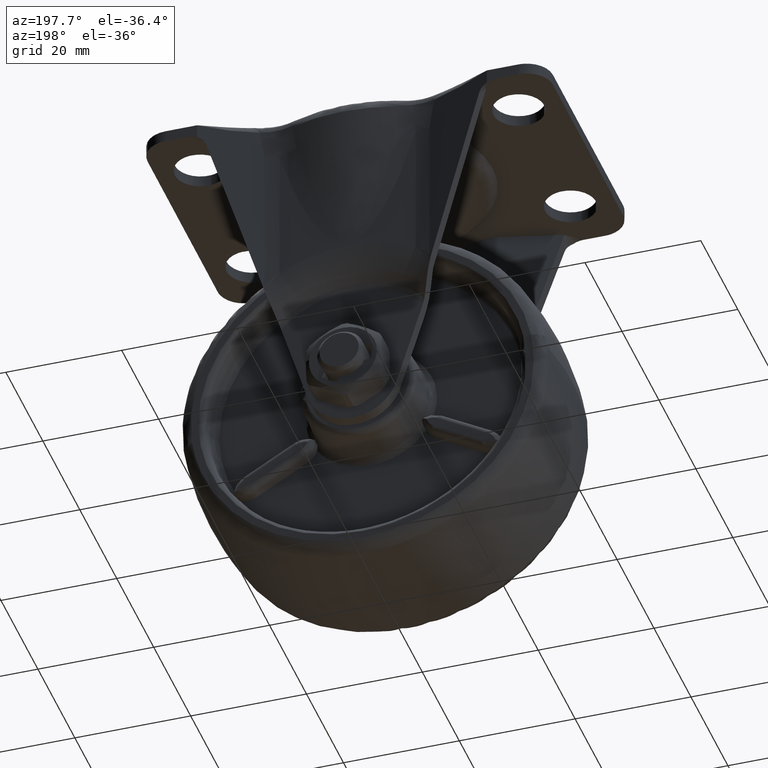
[diagram: clean part render]
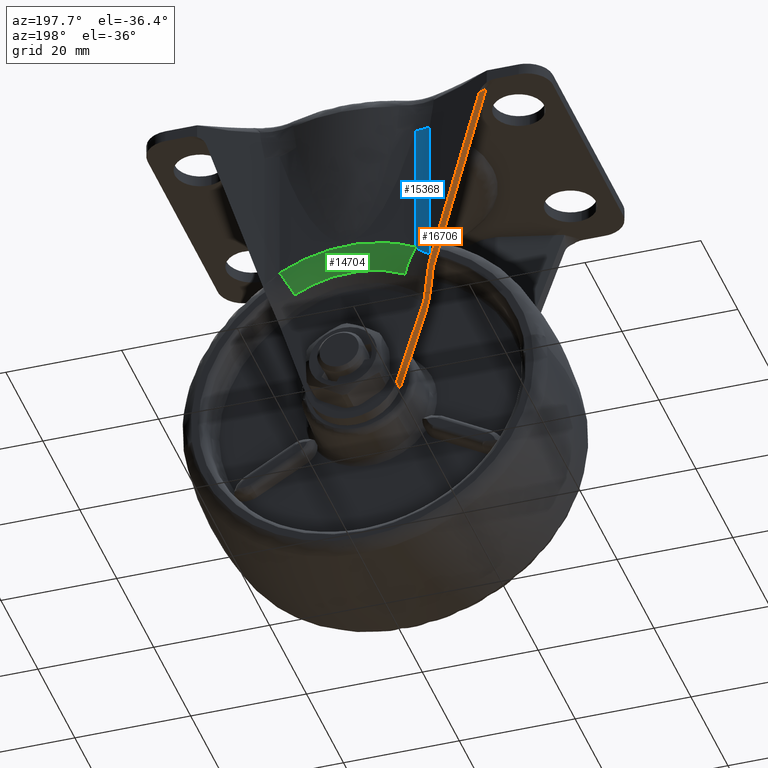
[diagram: same view with three faces highlighted in distinct colors, each labeled with its STEP entity id]
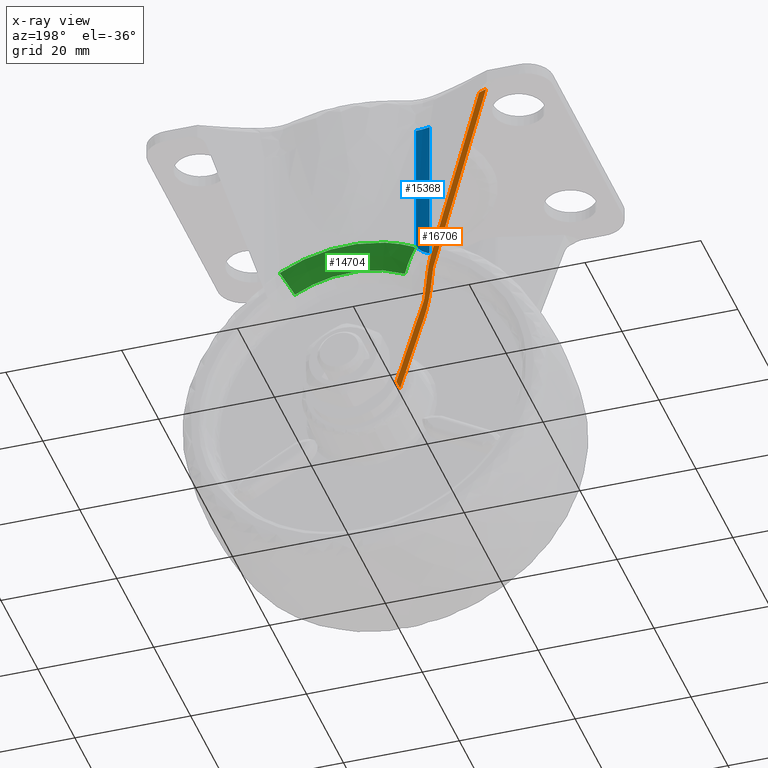
[diagram: x-ray of the same camera — body ghosted, the three highlighted faces saturated]
A machine part, auxiliary view with three faces highlighted in distinct colors.
The next image is the same camera in x-ray (body ghosted, the three faces saturated) — at least one of them is partly hidden behind the body in this view.
Their STEP definitions:

[orange] entity #16706 — the highlighted face is a freeform B-spline surface patch.
#9982=CARTESIAN_POINT('',(-12.281271991667440,18.005904999999849,11.754499682472060));
#9983=VERTEX_POINT('',#9982);
#9999=CARTESIAN_POINT('',(-12.595002921462999,18.241253714584150,12.777056627164860));
#10000=VERTEX_POINT('',#9999);
#10001=CARTESIAN_POINT('',(-12.595002921462999,18.241253714584150,12.777056627164860));
#10002=CARTESIAN_POINT('',(-12.545803674780149,18.161915174456158,12.616699370065639));
#10003=CARTESIAN_POINT('',(-12.494890061289130,18.103846329137209,12.450754402227920));
#10004=CARTESIAN_POINT('',(-12.416221623802770,18.045253952374541,12.194346922314351));
#10005=CARTESIAN_POINT('',(-12.389610926846039,18.030535539870652,12.107613513549270));
#10006=CARTESIAN_POINT('',(-12.335606797621621,18.010809904499769,11.931595492576619));
#10007=CARTESIAN_POINT('',(-12.308457663166120,18.005904999999849,11.843107130915961));
#10008=CARTESIAN_POINT('',(-12.281271991667440,18.005904999999849,11.754499682472060));
#10009=B_SPLINE_CURVE_WITH_KNOTS('',3,(#10001,#10002,#10003,#10004,#10005,#10006,#10007,#10008),.UNSPECIFIED.,.F.,.U.,(4,2,2,4),(0.0,0.499999999999997,0.749999999999998,1.0),.UNSPECIFIED.);
#10010=EDGE_CURVE('',#10000,#9983,#10009,.T.);
#10698=CARTESIAN_POINT('',(-14.101468009071979,18.470476564310751,17.687144192568852));
#10699=VERTEX_POINT('',#10698);
#10700=CARTESIAN_POINT('',(-14.319961813695221,18.676329657613799,18.399290608720150));
#10701=VERTEX_POINT('',#10700);
#10702=CARTESIAN_POINT('',(-14.101468009071979,18.470476564310751,17.687144192568852));
#10703=CARTESIAN_POINT('',(-14.135808582099189,18.528577961309619,17.799071924579799));
#10704=CARTESIAN_POINT('',(-14.171199331246889,18.574748565854541,17.914422541563791));
#10705=CARTESIAN_POINT('',(-14.225832065317300,18.626433813123750,18.092489401811370));
#10706=CARTESIAN_POINT('',(-14.244302452104250,18.640714392375830,18.152690741515009));
#10707=CARTESIAN_POINT('',(-14.281778728902340,18.663191830538750,18.274838810008241));
#10708=CARTESIAN_POINT('',(-14.300840403825401,18.671391628988449,18.336967361001790));
#10709=CARTESIAN_POINT('',(-14.319961813695221,18.676329657613799,18.399290608720150));
#10710=B_SPLINE_CURVE_WITH_KNOTS('',3,(#10702,#10703,#10704,#10705,#10706,#10707,#10708,#10709),.UNSPECIFIED.,.F.,.U.,(4,2,2,4),(0.0,0.500000000000001,0.750000000000000,1.0),.UNSPECIFIED.);
#10711=EDGE_CURVE('',#10699,#10701,#10710,.T.);
#14104=CARTESIAN_POINT('',(-23.567250999525100,23.130020291754800,48.539384805728098));
#14105=VERTEX_POINT('',#14104);
#14127=CARTESIAN_POINT('',(-23.868019397345201,22.174885192544082,49.519692402864109));
#14128=VERTEX_POINT('',#14127);
#14129=CARTESIAN_POINT('',(-23.868019397345201,22.174885192544082,49.519692402864109));
#14130=CARTESIAN_POINT('',(-23.767763264738502,22.493263558947671,49.192923203818822));
#14131=CARTESIAN_POINT('',(-23.667507132131799,22.811641925351271,48.866154004773527));
#14132=CARTESIAN_POINT('',(-23.567250999525100,23.130020291754800,48.539384805728098));
#14133=B_SPLINE_CURVE_WITH_KNOTS('',3,(#14129,#14130,#14131,#14132),.UNSPECIFIED.,.F.,.U.,(4,4),(0.860375669582198,1.000000000000000),.UNSPECIFIED.);
#14134=EDGE_CURVE('',#14128,#14105,#14133,.T.);
#14136=CARTESIAN_POINT('',(-24.168787795165301,21.219750093333349,50.500000000000000));
#14137=VERTEX_POINT('',#14136);
#14138=CARTESIAN_POINT('',(-24.168787795165301,21.219750093333300,50.500000000000000));
#14139=CARTESIAN_POINT('',(-24.068531662558598,21.538128459736889,50.173230800954691));
#14140=CARTESIAN_POINT('',(-23.968275529951899,21.856506826140489,49.846461601909397));
#14141=CARTESIAN_POINT('',(-23.868019397345201,22.174885192544082,49.519692402864109));
#14142=B_SPLINE_CURVE_WITH_KNOTS('',3,(#14138,#14139,#14140,#14141),.UNSPECIFIED.,.F.,.U.,(4,4),(0.720751339164396,0.860375669582198),.UNSPECIFIED.);
#14143=EDGE_CURVE('',#14137,#14128,#14142,.T.);
#14567=CARTESIAN_POINT('',(-14.528225214446300,20.795727560416100,19.078092621968349));
#14568=VERTEX_POINT('',#14567);
#14610=CARTESIAN_POINT('',(-13.561691867612080,19.829762016888800,15.927828200393700));
#14611=VERTEX_POINT('',#14610);
#14629=CARTESIAN_POINT('',(-14.528225214446300,20.795727560416100,19.078092621968349));
#14630=CARTESIAN_POINT('',(-14.359024605904541,20.729073825467982,18.526609676300879));
#14631=CARTESIAN_POINT('',(-14.193962328692059,20.614290660002819,17.988614974980390));
#14632=CARTESIAN_POINT('',(-13.871782830821530,20.292322098098250,16.938521242749921));
#14633=CARTESIAN_POINT('',(-13.714664101762590,20.085154244592431,16.426417295443152));
#14634=CARTESIAN_POINT('',(-13.561691867612080,19.829762016888800,15.927828200393700));
#14635=B_SPLINE_CURVE_WITH_KNOTS('',3,(#14629,#14630,#14631,#14632,#14633,#14634),.UNSPECIFIED.,.F.,.U.,(4,2,4),(0.0,0.500000000000000,1.0),.UNSPECIFIED.);
#14636=EDGE_CURVE('',#14568,#14611,#14635,.T.);
#14857=CARTESIAN_POINT('',(-13.333103028458900,17.182648572918399,15.182778596557499));
#14858=VERTEX_POINT('',#14857);
#14872=CARTESIAN_POINT('',(-11.769327249039600,16.005904999999849,10.085895786088020));
#14873=VERTEX_POINT('',#14872);
#14874=CARTESIAN_POINT('',(-11.769327249039600,16.005904999999849,10.085895786088020));
#14875=CARTESIAN_POINT('',(-11.904647486386040,16.005904999999860,10.526950955708211));
#14876=CARTESIAN_POINT('',(-12.038948868014900,16.028667389584118,10.964685324314850));
#14877=CARTESIAN_POINT('',(-12.305409896690270,16.122040942733420,11.833173412306520));
#14878=CARTESIAN_POINT('',(-12.437570639398640,16.192627627972929,12.263930702830180));
#14879=CARTESIAN_POINT('',(-12.634095529261970,16.336850046381539,12.904472874001140));
#14880=CARTESIAN_POINT('',(-12.699317343935160,16.391324516726961,13.117053187912180));
#14881=CARTESIAN_POINT('',(-12.796701087623070,16.483066905983151,13.434460284092150));
#14882=CARTESIAN_POINT('',(-12.829087461837720,16.515320465163260,13.540018610420370));
#14883=CARTESIAN_POINT('',(-12.893706654262870,16.583258198408132,13.750634771274600));
#14884=CARTESIAN_POINT('',(-12.925962386261610,16.618972781680739,13.855767289713100));
#14885=CARTESIAN_POINT('',(-13.086125741860711,16.805484197729321,14.377794721499599));
#14886=CARTESIAN_POINT('',(-13.211212073654950,16.980515045719041,14.785494075036970));
#14887=CARTESIAN_POINT('',(-13.333103028458900,17.182648572918399,15.182778596557499));
#14888=B_SPLINE_CURVE_WITH_KNOTS('',3,(#14874,#14875,#14876,#14877,#14878,#14879,#14880,#14881,#14882,#14883,#14884,#14885,#14886,#14887),.UNSPECIFIED.,.F.,.U.,(4,2,2,2,2,2,4),(0.0,0.250000000000000,0.499999999999999,0.624999999999999,0.687499999999999,0.749999999999999,1.0),.UNSPECIFIED.);
#14889=EDGE_CURVE('',#14873,#14858,#14888,.T.);
#15521=CARTESIAN_POINT('',(-7.648125792956220,16.005904999999899,-3.346523354905685));
#15522=VERTEX_POINT('',#15521);
#15523=CARTESIAN_POINT('',(-11.769327249039600,16.005904999999849,10.085895786088020));
#15524=CARTESIAN_POINT('',(-7.648125792956220,16.005904999999899,-3.346523354905685));
#15525=QUASI_UNIFORM_CURVE('',1,(#15523,#15524),.UNSPECIFIED.,.F.,.U.);
#15526=EDGE_CURVE('',#14873,#15522,#15525,.T.);
#15578=CARTESIAN_POINT('',(-14.101468009071960,18.470476564310768,17.687144192568852));
#15579=CARTESIAN_POINT('',(-13.845813359186900,18.037930133131290,16.853877807729688));
#15580=CARTESIAN_POINT('',(-13.589749528233620,17.608249162611418,16.019277761133878));
#15581=CARTESIAN_POINT('',(-13.333103028458890,17.182648572918382,15.182778596557510));
#15582=QUASI_UNIFORM_CURVE('',3,(#15578,#15579,#15580,#15581),.UNSPECIFIED.,.F.,.U.);
#15583=EDGE_CURVE('',#10699,#14858,#15582,.T.);
#15634=CARTESIAN_POINT('',(-24.168787795165301,21.219750093333349,50.500000000000000));
#15635=CARTESIAN_POINT('',(-14.319961813695221,18.676329657613799,18.399290608720150));
#15636=QUASI_UNIFORM_CURVE('',1,(#15634,#15635),.UNSPECIFIED.,.F.,.U.);
#15637=EDGE_CURVE('',#14137,#10701,#15636,.T.);
#15876=CARTESIAN_POINT('',(-7.648125792956220,18.005904999999899,-3.346523354905685));
#15877=VERTEX_POINT('',#15876);
#15878=CARTESIAN_POINT('',(-7.648125792956220,18.005904999999899,-3.346523354905685));
#15879=CARTESIAN_POINT('',(-7.648125792956220,16.005904999999899,-3.346523354905685));
#15880=QUASI_UNIFORM_CURVE('',1,(#15878,#15879),.UNSPECIFIED.,.F.,.U.);
#15881=EDGE_CURVE('',#15877,#15522,#15880,.T.);
#16130=CARTESIAN_POINT('',(-12.281271991667440,18.005904999999849,11.754499682472060));
#16131=CARTESIAN_POINT('',(-7.648125792956220,18.005904999999899,-3.346523354905685));
#16132=QUASI_UNIFORM_CURVE('',1,(#16130,#16131),.UNSPECIFIED.,.F.,.U.);
#16133=EDGE_CURVE('',#9983,#15877,#16132,.T.);
#16173=CARTESIAN_POINT('',(-13.561691867612060,19.829762016888779,15.927828200393710));
#16174=CARTESIAN_POINT('',(-13.240365687644760,19.293297282768631,14.880515724536480));
#16175=CARTESIAN_POINT('',(-12.918292441019419,18.762589309123371,13.830768301637820));
#16176=CARTESIAN_POINT('',(-12.595002921462980,18.241253714584161,12.777056627164860));
#16177=QUASI_UNIFORM_CURVE('',3,(#16173,#16174,#16175,#16176),.UNSPECIFIED.,.F.,.U.);
#16178=EDGE_CURVE('',#14611,#10000,#16177,.T.);
#16590=CARTESIAN_POINT('',(-23.567250999525100,23.130020291754800,48.539384805728098));
#16591=CARTESIAN_POINT('',(-14.528225214446300,20.795727560416100,19.078092621968349));
#16592=QUASI_UNIFORM_CURVE('',1,(#16590,#16591),.UNSPECIFIED.,.F.,.U.);
#16593=EDGE_CURVE('',#14105,#14568,#16592,.T.);
#16686=CARTESIAN_POINT('',(-24.993994927353729,15.650055614189149,53.189633707391089));
#16687=CARTESIAN_POINT('',(-6.822916271736856,15.650055614189149,-6.036157909547288));
#16688=CARTESIAN_POINT('',(-24.993994927353729,23.485869486481850,53.189633707391089));
#16689=CARTESIAN_POINT('',(-6.822916271736856,23.485869486481850,-6.036157909547288));
#16690=B_SPLINE_SURFACE_WITH_KNOTS('',1,1,((#16686,#16688),(#16687,#16689)),.UNSPECIFIED.,.F.,.F.,.U.,(2,2),(2,2),(0.0,61.950645615373730),(0.0,7.835813872292697),.UNSPECIFIED.);
#16691=ORIENTED_EDGE('',*,*,#15637,.F.);
#16692=ORIENTED_EDGE('',*,*,#14143,.T.);
#16693=ORIENTED_EDGE('',*,*,#14134,.T.);
#16694=ORIENTED_EDGE('',*,*,#16593,.T.);
#16695=ORIENTED_EDGE('',*,*,#14636,.T.);
#16696=ORIENTED_EDGE('',*,*,#16178,.T.);
#16697=ORIENTED_EDGE('',*,*,#10010,.T.);
#16698=ORIENTED_EDGE('',*,*,#16133,.T.);
#16699=ORIENTED_EDGE('',*,*,#15881,.T.);
#16700=ORIENTED_EDGE('',*,*,#15526,.F.);
#16701=ORIENTED_EDGE('',*,*,#14889,.T.);
#16702=ORIENTED_EDGE('',*,*,#15583,.F.);
#16703=ORIENTED_EDGE('',*,*,#10711,.T.);
#16704=EDGE_LOOP('',(#16691,#16692,#16693,#16694,#16695,#16696,#16697,#16698,#16699,#16700,#16701,#16702,#16703));
#16705=FACE_OUTER_BOUND('',#16704,.T.);
#16706=ADVANCED_FACE('',(#16705),#16690,.F.);

[blue] entity #15368 — the highlighted face is a freeform B-spline surface patch.
#10761=CARTESIAN_POINT('',(-14.250059904178260,20.723892466977048,45.268858470410002));
#10762=VERTEX_POINT('',#10761);
#10778=CARTESIAN_POINT('',(-11.749631796918120,20.406240285580949,45.268858470410102));
#10779=VERTEX_POINT('',#10778);
#10793=CARTESIAN_POINT('',(-14.250059904178260,20.723892466977059,45.268858470410002));
#10794=CARTESIAN_POINT('',(-13.020022977027597,20.406240285580949,45.268858470409995));
#10795=CARTESIAN_POINT('',(-11.749631796918120,20.406240285580949,45.268858470410102));
#10803=(BOUNDED_CURVE()B_SPLINE_CURVE(2,(#10793,#10794,#10795),.UNSPECIFIED.,.F.,.U.)CURVE()GEOMETRIC_REPRESENTATION_ITEM()QUASI_UNIFORM_CURVE()RATIONAL_B_SPLINE_CURVE((1.0,0.992026910386102,1.0))REPRESENTATION_ITEM(''));
#10804=EDGE_CURVE('',#10762,#10779,#10803,.T.);
#14565=CARTESIAN_POINT('',(-14.250059904178260,20.723892466977048,19.479886328267099));
#14566=VERTEX_POINT('',#14565);
#14576=CARTESIAN_POINT('',(-11.749631796918120,20.406240285580949,21.499098877672601));
#14577=VERTEX_POINT('',#14576);
#14578=CARTESIAN_POINT('',(-11.749631796918120,20.406240285580949,21.499098877672601));
#14579=CARTESIAN_POINT('',(-11.933349691280011,20.406240285580949,21.298288822745231));
#14580=CARTESIAN_POINT('',(-12.120945531287850,20.411274123050219,21.102520131358570));
#14581=CARTESIAN_POINT('',(-12.506194034381259,20.433034378736821,20.723896086940119));
#14582=CARTESIAN_POINT('',(-12.703802571414450,20.449733428805740,20.540986897347860));
#14583=CARTESIAN_POINT('',(-13.113193764330751,20.497498215220030,20.193119422470470));
#14584=CARTESIAN_POINT('',(-13.324853684336921,20.528487928236171,20.028011403571320));
#14585=CARTESIAN_POINT('',(-13.603400651440460,20.579402123652660,19.839087299330121));
#14586=CARTESIAN_POINT('',(-13.659825222956210,20.590203897651239,19.802195723338070));
#14587=CARTESIAN_POINT('',(-13.774321095642660,20.613179347464129,19.730463030426129));
#14588=CARTESIAN_POINT('',(-13.832439325256230,20.625365579951168,19.695601877095928));
#14589=CARTESIAN_POINT('',(-14.008195678791710,20.663895700173530,19.595387170931531));
#14590=CARTESIAN_POINT('',(-14.127637062481259,20.692277251320199,19.534086887882012));
#14591=CARTESIAN_POINT('',(-14.250059904178260,20.723892466977048,19.479886328267099));
#14592=B_SPLINE_CURVE_WITH_KNOTS('',3,(#14578,#14579,#14580,#14581,#14582,#14583,#14584,#14585,#14586,#14587,#14588,#14589,#14590,#14591),.UNSPECIFIED.,.F.,.U.,(4,2,2,2,2,2,4),(0.0,0.250000000000001,0.500000000000002,0.750000000000003,0.812500000000002,0.875000000000002,1.0),.UNSPECIFIED.);
#14593=EDGE_CURVE('',#14577,#14566,#14592,.T.);
#15340=CARTESIAN_POINT('',(-14.371535212315770,20.756078500391741,45.913582773963675));
#15341=CARTESIAN_POINT('',(-14.371535212315770,20.756078500391741,18.819043917124684));
#15342=CARTESIAN_POINT('',(-13.021977115392858,20.389409934375536,45.913582773963675));
#15343=CARTESIAN_POINT('',(-13.021977115392858,20.389409934375536,18.819043917124684));
#15344=CARTESIAN_POINT('',(-11.623605823167392,20.407034444418358,45.913582773963675));
#15345=CARTESIAN_POINT('',(-11.623605823167392,20.407034444418358,18.819043917124684));
#15353=(BOUNDED_SURFACE()B_SPLINE_SURFACE(1,2,((#15340,#15342,#15344),(#15341,#15343,#15345)),.UNSPECIFIED.,.F.,.F.,.U.)B_SPLINE_SURFACE_WITH_KNOTS((2,2),(3,3),(0.0,27.094538856838991),(0.0,2.783419811200235),.UNSPECIFIED.)GEOMETRIC_REPRESENTATION_ITEM()RATIONAL_B_SPLINE_SURFACE(((0.998046855020953,0.986941779540842,0.995047639290982),(0.998046855020953,0.986941779540842,0.995047639290982)))REPRESENTATION_ITEM('')SURFACE());
#15354=CARTESIAN_POINT('',(-14.250059904178260,20.723892466977048,45.268858470410002));
#15355=CARTESIAN_POINT('',(-14.250059904178260,20.723892466977048,19.479886328267099));
#15356=QUASI_UNIFORM_CURVE('',1,(#15354,#15355),.UNSPECIFIED.,.F.,.U.);
#15357=EDGE_CURVE('',#10762,#14566,#15356,.T.);
#15358=ORIENTED_EDGE('',*,*,#15357,.F.);
#15359=ORIENTED_EDGE('',*,*,#10804,.T.);
#15360=CARTESIAN_POINT('',(-11.749631796918120,20.406240285580949,21.499098877672601));
#15361=CARTESIAN_POINT('',(-11.749631796918120,20.406240285580949,45.268858470410102));
#15362=QUASI_UNIFORM_CURVE('',1,(#15360,#15361),.UNSPECIFIED.,.F.,.U.);
#15363=EDGE_CURVE('',#14577,#10779,#15362,.T.);
#15364=ORIENTED_EDGE('',*,*,#15363,.F.);
#15365=ORIENTED_EDGE('',*,*,#14593,.T.);
#15366=EDGE_LOOP('',(#15358,#15359,#15364,#15365));
#15367=FACE_OUTER_BOUND('',#15366,.T.);
#15368=ADVANCED_FACE('',(#15367),#15353,.F.);

[green] entity #14704 — the highlighted face is a freeform B-spline surface patch.
#14576=CARTESIAN_POINT('',(-11.749631796918120,20.406240285580949,21.499098877672601));
#14577=VERTEX_POINT('',#14576);
#14595=CARTESIAN_POINT('',(-9.492582695665368,19.229496712659451,17.369222925957850));
#14596=VERTEX_POINT('',#14595);
#14597=CARTESIAN_POINT('',(-11.749631796918120,20.406240285580921,21.499098877672601));
#14598=CARTESIAN_POINT('',(-10.550557072522491,20.406240285580918,19.305070459840689));
#14599=CARTESIAN_POINT('',(-9.492582695665362,19.229496712659440,17.369222925957860));
#14607=(BOUNDED_CURVE()B_SPLINE_CURVE(2,(#14597,#14598,#14599),.UNSPECIFIED.,.F.,.U.)CURVE()GEOMETRIC_REPRESENTATION_ITEM()QUASI_UNIFORM_CURVE()RATIONAL_B_SPLINE_CURVE((1.0,0.970135465465481,1.0))REPRESENTATION_ITEM(''));
#14608=EDGE_CURVE('',#14577,#14596,#14607,.T.);
#14641=CARTESIAN_POINT('',(-12.885571607733958,20.403308724895997,21.122259567817604));
#14642=CARTESIAN_POINT('',(-0.000000321760101,20.403308724895989,28.983063994487747));
#14643=CARTESIAN_POINT('',(12.885571138749699,20.403308724896004,21.122259853920056));
#14644=CARTESIAN_POINT('',(-11.449138120243720,20.470109901974830,18.767632090021912));
#14645=CARTESIAN_POINT('',(-0.000000285891535,20.470109901974837,25.752144563116381));
#14646=CARTESIAN_POINT('',(11.449137703540002,20.470109901974833,18.767632344230776));
#14647=CARTESIAN_POINT('',(-10.198081643615291,19.113150370331887,16.716877925768578));
#14648=CARTESIAN_POINT('',(-0.000000254651938,19.113150370331894,22.938187136417753));
#14649=CARTESIAN_POINT('',(10.198081272445123,19.113150370331898,16.716878152199836));
#14657=(BOUNDED_SURFACE()B_SPLINE_SURFACE(2,2,((#14641,#14644,#14647),(#14642,#14645,#14648),(#14643,#14646,#14649)),.UNSPECIFIED.,.F.,.F.,.U.)B_SPLINE_SURFACE_WITH_KNOTS((3,3),(3,3),(0.0,27.805298170568030),(0.0,5.416804116549495),.UNSPECIFIED.)GEOMETRIC_REPRESENTATION_ITEM()RATIONAL_B_SPLINE_SURFACE(((0.877819588674426,0.846917288063032,0.879301330869012),(0.749382087360056,0.723001233212834,0.750647029579430),(0.877819583198616,0.846917282779990,0.879301325383959)))REPRESENTATION_ITEM('')SURFACE());
#14658=CARTESIAN_POINT('',(11.749631796918120,20.406240285580949,21.499098877672601));
#14659=VERTEX_POINT('',#14658);
#14660=CARTESIAN_POINT('',(9.492582695665368,19.229496712659451,17.369222925957850));
#14661=VERTEX_POINT('',#14660);
#14662=CARTESIAN_POINT('',(11.749631796918120,20.406240285580921,21.499098877672601));
#14663=CARTESIAN_POINT('',(10.550557072522491,20.406240285580918,19.305070459840689));
#14664=CARTESIAN_POINT('',(9.492582695665362,19.229496712659440,17.369222925957860));
#14672=(BOUNDED_CURVE()B_SPLINE_CURVE(2,(#14662,#14663,#14664),.UNSPECIFIED.,.F.,.U.)CURVE()GEOMETRIC_REPRESENTATION_ITEM()QUASI_UNIFORM_CURVE()RATIONAL_B_SPLINE_CURVE((1.0,0.970135465465481,1.0))REPRESENTATION_ITEM(''));
#14673=EDGE_CURVE('',#14659,#14661,#14672,.T.);
#14674=ORIENTED_EDGE('',*,*,#14673,.T.);
#14675=CARTESIAN_POINT('',(-9.492582695665359,19.229496712659451,17.369222925957839));
#14676=CARTESIAN_POINT('',(-3.469447E-015,19.229496712659447,22.557084617765568));
#14677=CARTESIAN_POINT('',(9.492582695665353,19.229496712659451,17.369222925957839));
#14685=(BOUNDED_CURVE()B_SPLINE_CURVE(2,(#14675,#14676,#14677),.UNSPECIFIED.,.F.,.U.)CURVE()GEOMETRIC_REPRESENTATION_ITEM()QUASI_UNIFORM_CURVE()RATIONAL_B_SPLINE_CURVE((1.0,0.877503202720061,1.0))REPRESENTATION_ITEM(''));
#14686=EDGE_CURVE('',#14596,#14661,#14685,.T.);
#14687=ORIENTED_EDGE('',*,*,#14686,.F.);
#14688=ORIENTED_EDGE('',*,*,#14608,.F.);
#14689=CARTESIAN_POINT('',(11.749631796918120,20.406240285580949,21.499098877672608));
#14690=CARTESIAN_POINT('',(8.673617E-015,20.406240285580953,27.920477194441123));
#14691=CARTESIAN_POINT('',(-11.749631796918109,20.406240285580949,21.499098877672608));
#14699=(BOUNDED_CURVE()B_SPLINE_CURVE(2,(#14689,#14690,#14691),.UNSPECIFIED.,.F.,.U.)CURVE()GEOMETRIC_REPRESENTATION_ITEM()QUASI_UNIFORM_CURVE()RATIONAL_B_SPLINE_CURVE((1.0,0.877503202720061,1.0))REPRESENTATION_ITEM(''));
#14700=EDGE_CURVE('',#14659,#14577,#14699,.T.);
#14701=ORIENTED_EDGE('',*,*,#14700,.F.);
#14702=EDGE_LOOP('',(#14674,#14687,#14688,#14701));
#14703=FACE_OUTER_BOUND('',#14702,.T.);
#14704=ADVANCED_FACE('',(#14703),#14657,.T.);